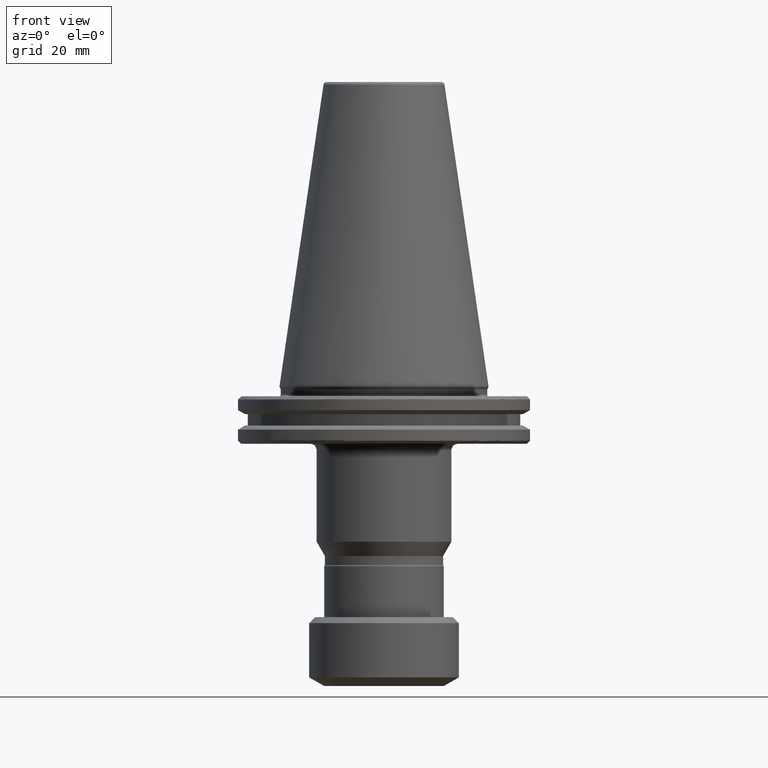
[diagram: clean part render]
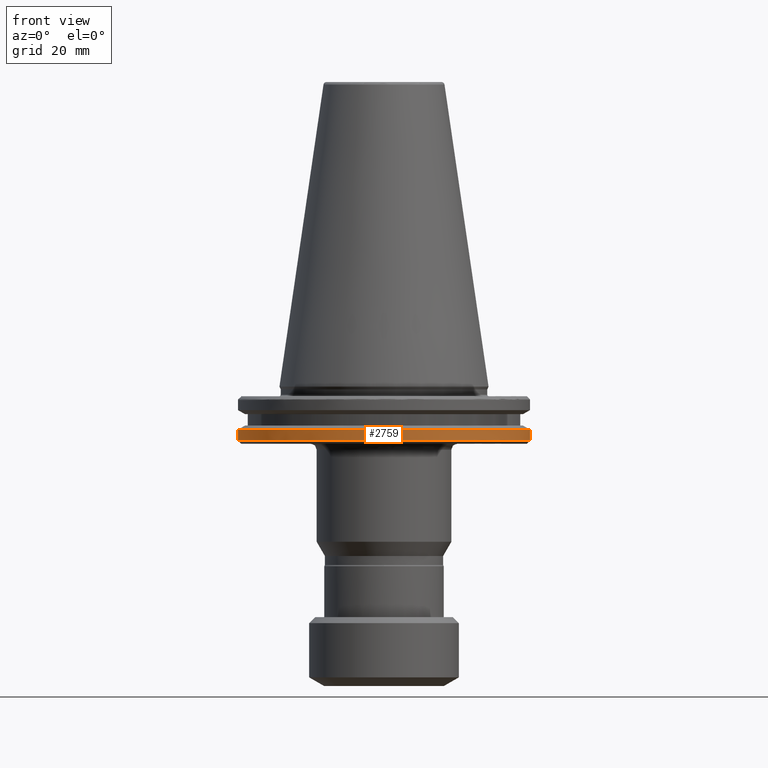
[diagram: same view with one face highlighted and labeled with its STEP entity id]
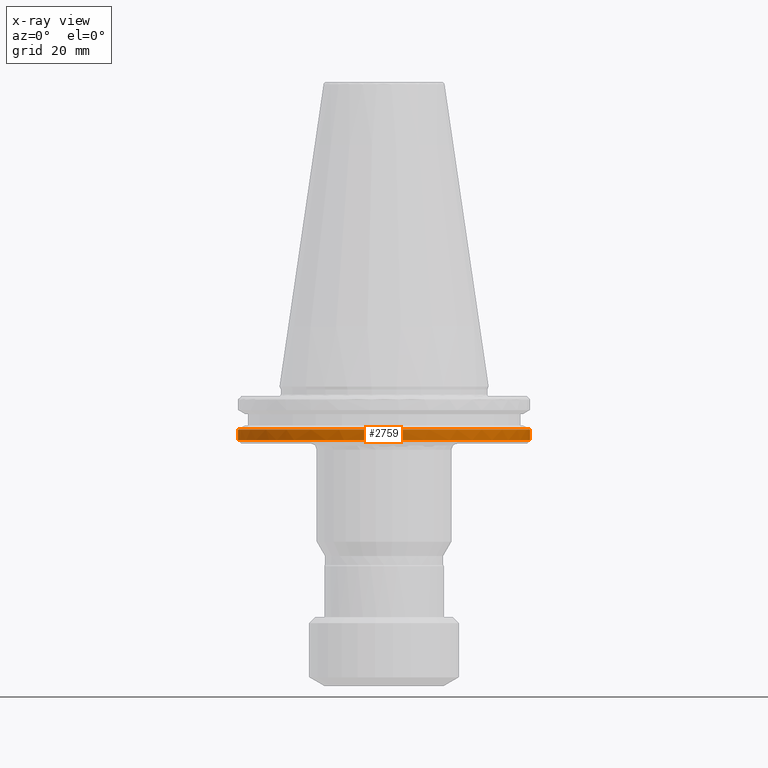
[diagram: x-ray of the same camera — body ghosted, the highlighted face saturated]
A machine part, front view. The second image highlights one B-rep face of the part: STEP entity #2759.
The next image is the same camera in x-ray: the body ghosted, the highlighted face saturated — about 0% of this face is hidden behind the body in this view.
In plain terms, the highlighted cylindrical surface (partial cylindrical patch) has radius 48.75 mm, axis along (0, 0, 1).
Its self-contained STEP definition (entity closure, byte-faithful):
#6 = DIRECTION ( 'NONE',  ( 0.0000000000000000000, 0.0000000000000000000, 1.000000000000000000 ) ) ;
#30 = CARTESIAN_POINT ( 'NONE',  ( 0.0000000000000000000, 0.0000000000000000000, -17.93431457505077700 ) ) ;
#121 = AXIS2_PLACEMENT_3D ( 'NONE', #1426, #3090, #2063 ) ;
#161 = LINE ( 'NONE', #2675, #3351 ) ;
#166 = FACE_OUTER_BOUND ( 'NONE', #2967, .T. ) ;
#197 = CARTESIAN_POINT ( 'NONE',  ( 0.0000000000000000000, 0.0000000000000000000, 109.4760732604896600 ) ) ;
#439 = ORIENTED_EDGE ( 'NONE', *, *, #1152, .T. ) ;
#617 = ORIENTED_EDGE ( 'NONE', *, *, #619, .T. ) ;
#619 = EDGE_CURVE ( 'NONE', #1385, #2937, #1866, .T. ) ;
#653 = ORIENTED_EDGE ( 'NONE', *, *, #2055, .T. ) ;
#665 = AXIS2_PLACEMENT_3D ( 'NONE', #1172, #1163, #1158 ) ;
#734 = CARTESIAN_POINT ( 'NONE',  ( -48.75000000000000000, 5.970153145843347100E-015, 109.4760732604896600 ) ) ;
#834 = AXIS2_PLACEMENT_3D ( 'NONE', #3385, #3380, #3370 ) ;
#1146 = CARTESIAN_POINT ( 'NONE',  ( -13.39707817141260500, -46.87302845420872200, -17.93431457505077400 ) ) ;
#1152 = EDGE_CURVE ( 'NONE', #1574, #2088, #2814, .T. ) ;
#1158 = DIRECTION ( 'NONE',  ( 1.000000000000000000, 0.0000000000000000000, 0.0000000000000000000 ) ) ;
#1163 = DIRECTION ( 'NONE',  ( 0.0000000000000000000, 0.0000000000000000000, 1.000000000000000000 ) ) ;
#1172 = CARTESIAN_POINT ( 'NONE',  ( 0.0000000000000000000, 0.0000000000000000000, -17.93431457505077700 ) ) ;
#1174 = EDGE_CURVE ( 'NONE', #1487, #1635, #2954, .T. ) ;
#1207 = AXIS2_PLACEMENT_3D ( 'NONE', #2036, #2032, #2026 ) ;
#1220 = ORIENTED_EDGE ( 'NONE', *, *, #1743, .T. ) ;
#1223 = CARTESIAN_POINT ( 'NONE',  ( -48.75000000000000000, 5.970153145843347100E-015, -17.93431457505077700 ) ) ;
#1348 = ORIENTED_EDGE ( 'NONE', *, *, #1464, .T. ) ;
#1385 = VERTEX_POINT ( 'NONE', #1223 ) ;
#1426 = CARTESIAN_POINT ( 'NONE',  ( 0.0000000000000000000, 0.0000000000000000000, -14.34759526419164500 ) ) ;
#1430 = VECTOR ( 'NONE', #2901, 1000.000000000000000 ) ;
#1464 = EDGE_CURVE ( 'NONE', #2937, #1574, #3431, .T. ) ;
#1487 = VERTEX_POINT ( 'NONE', #3242 ) ;
#1574 = VERTEX_POINT ( 'NONE', #3108 ) ;
#1618 = CARTESIAN_POINT ( 'NONE',  ( 13.51915856623741000, -46.83796378645137500, -17.93431457505078800 ) ) ;
#1630 = CARTESIAN_POINT ( 'NONE',  ( -38.42606537234850400, -30.00000000000000000, -17.93431457505077700 ) ) ;
#1635 = VERTEX_POINT ( 'NONE', #3051 ) ;
#1743 = EDGE_CURVE ( 'NONE', #2088, #3243, #2162, .T. ) ;
#1834 = CARTESIAN_POINT ( 'NONE',  ( 48.75000000000000000, 0.0000000000000000000, -17.93431457505077700 ) ) ;
#1860 = ORIENTED_EDGE ( 'NONE', *, *, #3144, .F. ) ;
#1866 = CIRCLE ( 'NONE', #3239, 48.75000000000000000 ) ;
#1869 = CIRCLE ( 'NONE', #665, 48.75000000000000000 ) ;
#1909 = LINE ( 'NONE', #734, #1430 ) ;
#2026 = DIRECTION ( 'NONE',  ( 1.000000000000000000, 0.0000000000000000000, 0.0000000000000000000 ) ) ;
#2032 = DIRECTION ( 'NONE',  ( -0.0000000000000000000, -0.0000000000000000000, 1.000000000000000000 ) ) ;
#2036 = CARTESIAN_POINT ( 'NONE',  ( 0.0000000000000000000, 0.0000000000000000000, -17.93431457505077700 ) ) ;
#2055 = EDGE_CURVE ( 'NONE', #3243, #3077, #1869, .T. ) ;
#2063 = DIRECTION ( 'NONE',  ( 1.000000000000000000, 0.0000000000000000000, 0.0000000000000000000 ) ) ;
#2088 = VERTEX_POINT ( 'NONE', #1146 ) ;
#2159 = DIRECTION ( 'NONE',  ( 1.000000000000000000, 0.0000000000000000000, 0.0000000000000000000 ) ) ;
#2162 = CIRCLE ( 'NONE', #1207, 48.75000000000000700 ) ;
#2315 = ORIENTED_EDGE ( 'NONE', *, *, #1174, .T. ) ;
#2473 = AXIS2_PLACEMENT_3D ( 'NONE', #197, #2867, #2627 ) ;
#2565 = CYLINDRICAL_SURFACE ( 'NONE', #2473, 48.75000000000000000 ) ;
#2627 = DIRECTION ( 'NONE',  ( 1.000000000000000000, 0.0000000000000000000, 0.0000000000000000000 ) ) ;
#2651 = ORIENTED_EDGE ( 'NONE', *, *, #2858, .T. ) ;
#2662 = AXIS2_PLACEMENT_3D ( 'NONE', #30, #6, #2159 ) ;
#2675 = CARTESIAN_POINT ( 'NONE',  ( 48.75000000000000000, 0.0000000000000000000, 109.4760732604896600 ) ) ;
#2759 = ADVANCED_FACE ( 'NONE', ( #166 ), #2565, .T. ) ;
#2804 = DIRECTION ( 'NONE',  ( 0.0000000000000000000, 0.0000000000000000000, 1.000000000000000000 ) ) ;
#2814 = CIRCLE ( 'NONE', #2662, 48.75000000000000000 ) ;
#2858 = EDGE_CURVE ( 'NONE', #3077, #1487, #161, .T. ) ;
#2867 = DIRECTION ( 'NONE',  ( 0.0000000000000000000, 0.0000000000000000000, 1.000000000000000000 ) ) ;
#2901 = DIRECTION ( 'NONE',  ( 0.0000000000000000000, 0.0000000000000000000, 1.000000000000000000 ) ) ;
#2937 = VERTEX_POINT ( 'NONE', #1630 ) ;
#2954 = CIRCLE ( 'NONE', #121, 48.75000000000000000 ) ;
#2967 = EDGE_LOOP ( 'NONE', ( #1860, #617, #1348, #439, #1220, #653, #2651, #2315 ) ) ;
#3051 = CARTESIAN_POINT ( 'NONE',  ( -48.75000000000000000, 0.0000000000000000000, -14.34759526419164500 ) ) ;
#3077 = VERTEX_POINT ( 'NONE', #1834 ) ;
#3090 = DIRECTION ( 'NONE',  ( -0.0000000000000000000, -0.0000000000000000000, -1.000000000000000000 ) ) ;
#3108 = CARTESIAN_POINT ( 'NONE',  ( -30.00000000000000700, -38.42606537234850400, -17.93431457505077700 ) ) ;
#3144 = EDGE_CURVE ( 'NONE', #1385, #1635, #1909, .T. ) ;
#3146 = CARTESIAN_POINT ( 'NONE',  ( 0.0000000000000000000, 0.0000000000000000000, -17.93431457505077700 ) ) ;
#3239 = AXIS2_PLACEMENT_3D ( 'NONE', #3146, #2804, #3294 ) ;
#3242 = CARTESIAN_POINT ( 'NONE',  ( 48.75000000000000000, 5.970153145843347100E-015, -14.34759526419164500 ) ) ;
#3243 = VERTEX_POINT ( 'NONE', #1618 ) ;
#3294 = DIRECTION ( 'NONE',  ( 1.000000000000000000, 0.0000000000000000000, 0.0000000000000000000 ) ) ;
#3351 = VECTOR ( 'NONE', #3458, 1000.000000000000000 ) ;
#3370 = DIRECTION ( 'NONE',  ( 1.000000000000000000, 0.0000000000000000000, 0.0000000000000000000 ) ) ;
#3380 = DIRECTION ( 'NONE',  ( -0.0000000000000000000, -0.0000000000000000000, 1.000000000000000000 ) ) ;
#3385 = CARTESIAN_POINT ( 'NONE',  ( 0.0000000000000000000, 0.0000000000000000000, -17.93431457505077700 ) ) ;
#3431 = CIRCLE ( 'NONE', #834, 48.75000000000000700 ) ;
#3458 = DIRECTION ( 'NONE',  ( 0.0000000000000000000, 0.0000000000000000000, 1.000000000000000000 ) ) ;